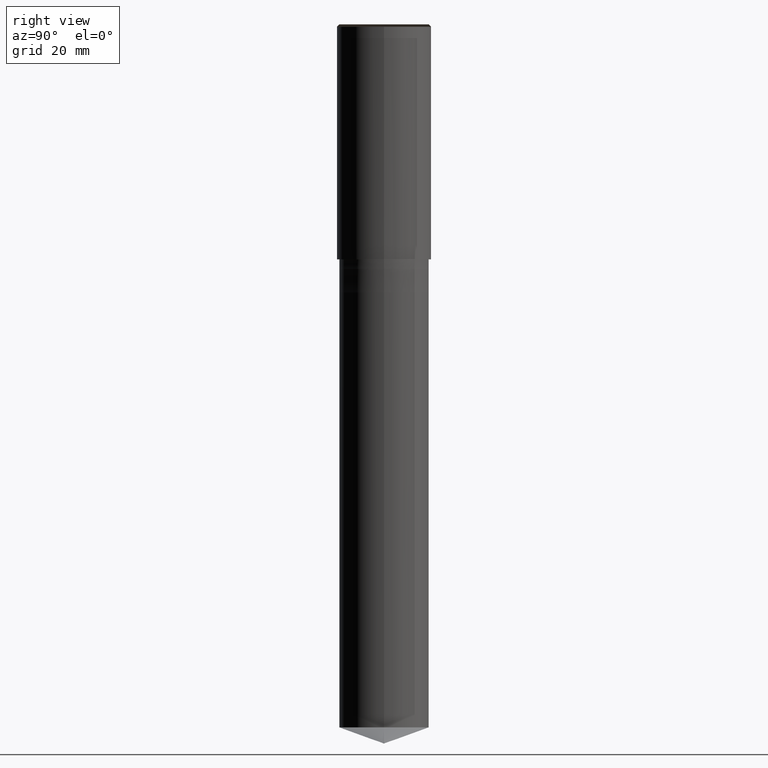
[diagram: clean part render]
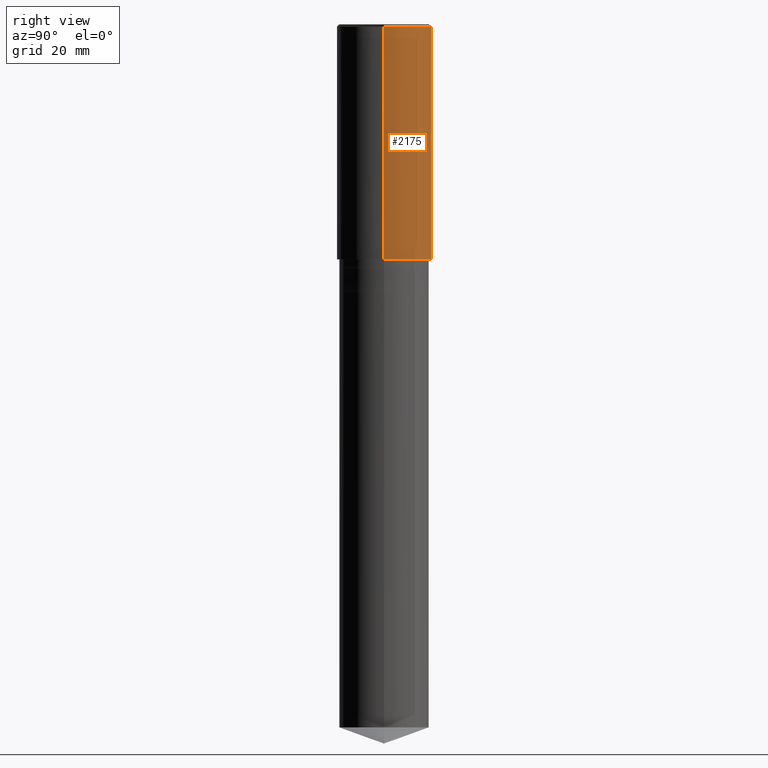
[diagram: same view with one face highlighted and labeled with its STEP entity id]
A machine part, right view. The second image highlights one B-rep face of the part: STEP entity #2175.
In plain terms, the highlighted face is a freeform B-spline surface patch.
Its self-contained STEP definition (entity closure, byte-faithful):
#1936=CARTESIAN_POINT('',(10.0,0.0,0.0));
#1937=CARTESIAN_POINT('',(10.0,10.0,0.0));
#1938=CARTESIAN_POINT('',(0.0,10.0,0.0));
#1939=CARTESIAN_POINT('',(-10.0,10.0,0.0));
#1940=CARTESIAN_POINT('',(-10.0,0.0,0.0));
#1941=CARTESIAN_POINT('',(10.0,0.0,49.5));
#1942=CARTESIAN_POINT('',(10.0,10.0,49.5));
#1943=CARTESIAN_POINT('',(0.0,10.0,49.5));
#1944=CARTESIAN_POINT('',(-10.0,10.0,49.5));
#1945=CARTESIAN_POINT('',(-10.0,0.0,49.5));
#2156=(
BOUNDED_SURFACE()
B_SPLINE_SURFACE(1,2,(
(#1936,#1937,#1938,#1939,#1940),
(#1941,#1942,#1943,#1944,#1945)
), .UNSPECIFIED.,.F.,.F.,.F.)
B_SPLINE_SURFACE_WITH_KNOTS((2,2),(3,2,3),(
0.0,1.0),(
0.0,0.5,1.0), .UNSPECIFIED.)
GEOMETRIC_REPRESENTATION_ITEM()
RATIONAL_B_SPLINE_SURFACE(((1.0,0.707106781187,1.0,0.707106781187,1.0),
(1.0,0.707106781187,1.0,0.707106781187,1.0)
))
REPRESENTATION_ITEM('')
SURFACE()
);
#2157=(
BOUNDED_CURVE()
B_SPLINE_CURVE(2,(#1940,#1939,#1938,#1937,#1936),.UNSPECIFIED.,.F.,.F.)
B_SPLINE_CURVE_WITH_KNOTS((3,2,3),
(0.0,0.5,1.0),.UNSPECIFIED.)
CURVE()
GEOMETRIC_REPRESENTATION_ITEM()
RATIONAL_B_SPLINE_CURVE((1.0,0.707106781187,1.0,0.707106781187,1.0))
REPRESENTATION_ITEM('')
);
#2158=(
BOUNDED_CURVE()
B_SPLINE_CURVE(1,(#1936,#1941),.UNSPECIFIED.,.F.,.F.)
B_SPLINE_CURVE_WITH_KNOTS((2,2),
(0.0,1.0),.UNSPECIFIED.)
CURVE()
GEOMETRIC_REPRESENTATION_ITEM()
RATIONAL_B_SPLINE_CURVE((1.0,1.0))
REPRESENTATION_ITEM('')
);
#2159=(
BOUNDED_CURVE()
B_SPLINE_CURVE(2,(#1941,#1942,#1943,#1944,#1945),.UNSPECIFIED.,.F.,.F.)
B_SPLINE_CURVE_WITH_KNOTS((3,2,3),
(0.0,0.5,1.0),.UNSPECIFIED.)
CURVE()
GEOMETRIC_REPRESENTATION_ITEM()
RATIONAL_B_SPLINE_CURVE((1.0,0.707106781187,1.0,0.707106781187,1.0))
REPRESENTATION_ITEM('')
);
#2160=(
BOUNDED_CURVE()
B_SPLINE_CURVE(1,(#1945,#1940),.UNSPECIFIED.,.F.,.F.)
B_SPLINE_CURVE_WITH_KNOTS((2,2),
(0.0,1.0),.UNSPECIFIED.)
CURVE()
GEOMETRIC_REPRESENTATION_ITEM()
RATIONAL_B_SPLINE_CURVE((1.0,1.0))
REPRESENTATION_ITEM('')
);
#2161=VERTEX_POINT('',#1936);
#2162=VERTEX_POINT('',#1940);
#2163=VERTEX_POINT('',#1941);
#2164=VERTEX_POINT('',#1945);
#2165=EDGE_CURVE('',#2162,#2161,#2157,.T.);
#2166=EDGE_CURVE('',#2161,#2163,#2158,.T.);
#2167=EDGE_CURVE('',#2163,#2164,#2159,.T.);
#2168=EDGE_CURVE('',#2164,#2162,#2160,.T.);
#2169=ORIENTED_EDGE('',*,*,#2165,.T.);
#2170=ORIENTED_EDGE('',*,*,#2166,.T.);
#2171=ORIENTED_EDGE('',*,*,#2167,.T.);
#2172=ORIENTED_EDGE('',*,*,#2168,.T.);
#2173=EDGE_LOOP('',(#2169,#2170,#2171,#2172));
#2174=FACE_OUTER_BOUND('',#2173,.T.);
#2175=ADVANCED_FACE('',(#2174),#2156,.T.);